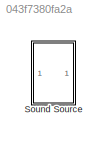
MODEL slx_043f7380fa2a
KIND model
CONFIG AbsTol = auto
CONFIG EnableMultiTasking = off
CONFIG FixedStep = auto
CONFIG MaxStep = auto
CONFIG MinStep = auto
CONFIG RelTol = 1e-3
CONFIG SampleTimeConstraint = Unconstrained
CONFIG SolverName = VariableStepAuto
CONFIG StartTime = 0.0
CONFIG StopTime = 10.0
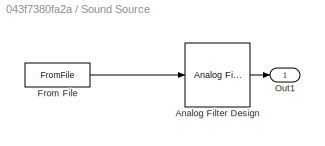
BLOCK [SubSystem] Sound Source
BLOCK [Reference] Sound Source/Analog Filter Design  REF=dspfdesign/Analog
Filter Design
  SourceBlock = dspfdesign/Analog\nFilter Design
  SourceType = Analog Filter Design
BLOCK [FromFile] Sound Source/From File
  FileName = sound.mat
  SampleTime = 0
BLOCK [Outport] Sound Source/Out1
LINE Sound Source/Analog Filter Design:1 -> Sound Source/Out1:1
LINE Sound Source/From File:1 -> Sound Source/Analog Filter Design:1
